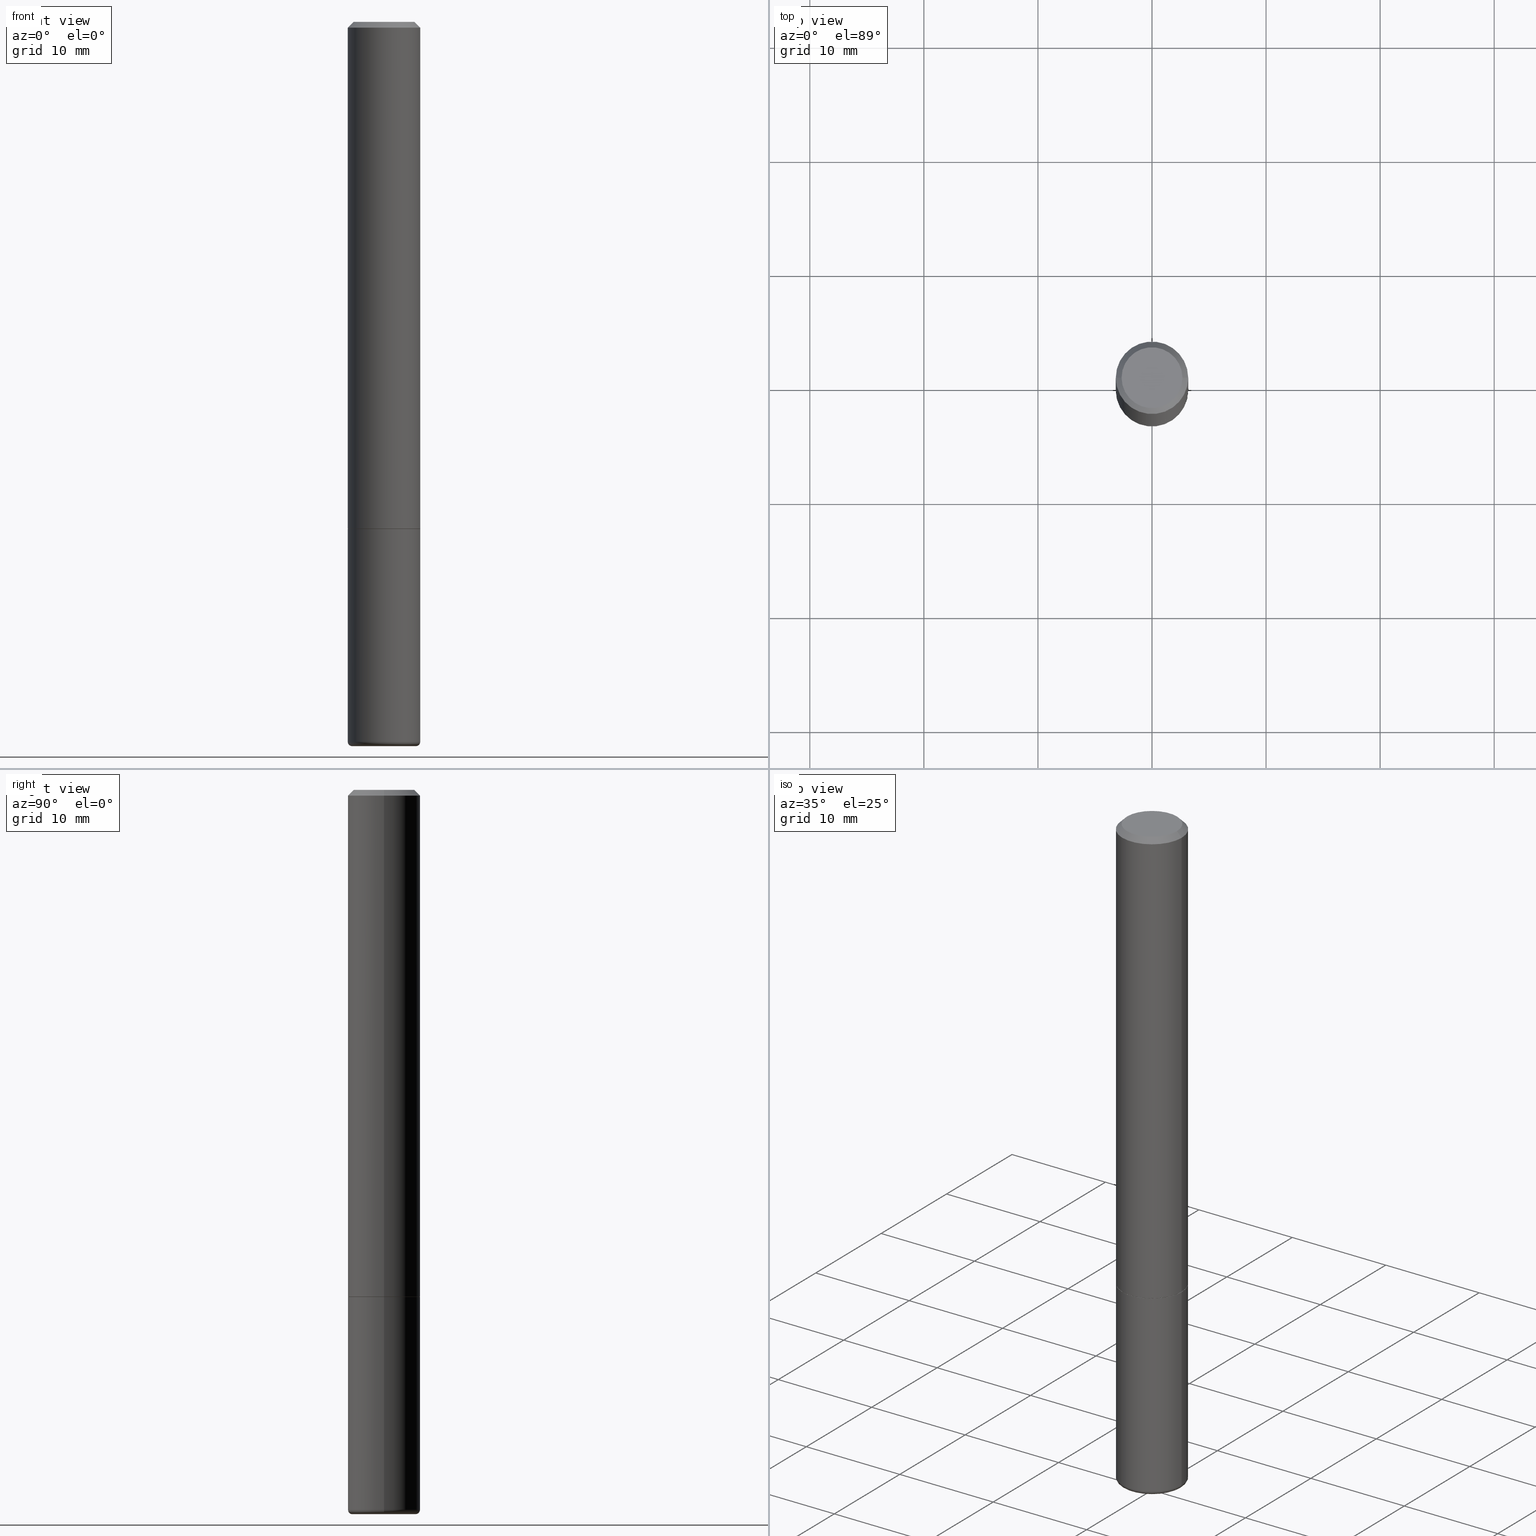
[diagram: canonical four-view strip — front | top / right | iso, engineering-drawing reading convention]
A machine part, canonical four-view strip (front | top / right | iso — engineering-drawing reading convention). The complete STEP part file that produces these views, byte-faithful:
ISO-10303-21;
HEADER;
FILE_DESCRIPTION (( 'STEP AP203' ),
    '1' );
FILE_NAME ('77119.STEP',
    '2024-03-06T16:02:47',
    ( '' ),
    ( '' ),
    'SwSTEP 2.0',
    'SolidWorks 2023',
    '' );
FILE_SCHEMA (( 'CONFIG_CONTROL_DESIGN' ));
ENDSEC;

DATA;
#1 = PERSON_AND_ORGANIZATION ( #336, #368 ) ;
#2 = DIRECTION ( 'NONE',  ( -1.000000000000000000, 6.982962677686267499E-15, 0.000000000000000000 ) ) ;
#3 = PERSON_AND_ORGANIZATION ( #336, #368 ) ;
#4 = DIRECTION ( 'NONE',  ( -2.445468806185136597E-29, 3.491481338843145583E-15, 1.000000000000000000 ) ) ;
#5 = AXIS2_PLACEMENT_3D ( 'NONE', #398, #79, #337 ) ;
#6 = AXIS2_PLACEMENT_3D ( 'NONE', #173, #372, #53 ) ;
#7 = DIRECTION ( 'NONE',  ( 1.000000000000000000, -6.982962677686262766E-15, 4.883557194083111780E-29 ) ) ;
#8 = CC_DESIGN_PERSON_AND_ORGANIZATION_ASSIGNMENT ( #3, #196, ( #111 ) ) ;
#9 = CARTESIAN_POINT ( 'NONE',  ( 4.279570410823989044E-29, -6.110092342975505460E-15, -1.750000000000000222 ) ) ;
#10 = CARTESIAN_POINT ( 'NONE',  ( 6.113672015462842613E-29, -8.728703347107864943E-15, -2.500000000000000000 ) ) ;
#11 = EDGE_CURVE ( 'NONE', #213, #51, #28, .T. ) ;
#12 = DIMENSIONAL_EXPONENTS ( 1.000000000000000000, 0.000000000000000000, 0.000000000000000000, 0.000000000000000000, 0.000000000000000000, 0.000000000000000000, 0.000000000000000000 ) ;
#13 = AXIS2_PLACEMENT_3D ( 'NONE', #203, #266, #172 ) ;
#14 = DIRECTION ( 'NONE',  ( 1.000000000000000000, -6.982962677686266711E-15, 4.876176775795935793E-29 ) ) ;
#15 = DIRECTION ( 'NONE',  ( 1.000000000000000000, -6.982962677686270655E-15, 0.000000000000000000 ) ) ;
#16 = DIRECTION ( 'NONE',  ( 0.7071067811865459074, -7.319954787623249734E-15, -0.7071067811865491270 ) ) ;
#17 = EDGE_CURVE ( 'NONE', #51, #57, #236, .T. ) ;
#18 = CARTESIAN_POINT ( 'NONE',  ( 0.000000000000000000, 0.000000000000000000, 0.000000000000000000 ) ) ;
#19 = EDGE_LOOP ( 'NONE', ( #73, #341, #350, #186 ) ) ;
#20 = ORIENTED_EDGE ( 'NONE', *, *, #371, .T. ) ;
#21 = ORIENTED_EDGE ( 'NONE', *, *, #339, .F. ) ;
#22 = EDGE_CURVE ( 'NONE', #123, #412, #267, .T. ) ;
#23 = VERTEX_POINT ( 'NONE', #296 ) ;
#24 = AXIS2_PLACEMENT_3D ( 'NONE', #35, #293, #66 ) ;
#25 = VECTOR ( 'NONE', #404, 39.37007874015748143 ) ;
#26 = ORIENTED_EDGE ( 'NONE', *, *, #399, .F. ) ;
#27 = APPROVAL_STATUS ( 'not_yet_approved' ) ;
#28 = LINE ( 'NONE', #137, #206 ) ;
#29 = APPROVAL ( #27, 'UNSPECIFIED' ) ;
#30 = DIRECTION ( 'NONE',  ( -2.445468806185136597E-29, 3.491481338843145583E-15, 1.000000000000000000 ) ) ;
#31 = CIRCLE ( 'NONE', #6, 0.01500000000000012955 ) ;
#32 = LOCAL_TIME ( 11, 2, 47.00000000000000000, #61 ) ;
#33 = DIRECTION ( 'NONE',  ( 2.445468806185136597E-29, -3.491481338843145583E-15, -1.000000000000000000 ) ) ;
#34 = APPROVAL_ROLE ( '' ) ;
#35 = CARTESIAN_POINT ( 'NONE',  ( 4.279570410823989044E-29, -6.110092342975505460E-15, -1.750000000000000222 ) ) ;
#36 = ADVANCED_FACE ( 'NONE', ( #224 ), #175, .T. ) ;
#37 = FACE_OUTER_BOUND ( 'NONE', #274, .T. ) ;
#38 = CIRCLE ( 'NONE', #59, 0.1239999999999999991 ) ;
#39 = DIRECTION ( 'NONE',  ( -1.000000000000000000, 7.105427357600994759E-15, 0.000000000000000000 ) ) ;
#40 = FACE_OUTER_BOUND ( 'NONE', #184, .T. ) ;
#41 = EDGE_CURVE ( 'NONE', #92, #195, #110, .T. ) ;
#42 = CARTESIAN_POINT ( 'NONE',  ( 0.1249999999999999584, -9.273918764983043491E-16, -0.02000000000000006287 ) ) ;
#43 = TOROIDAL_SURFACE ( 'NONE', #396, 0.1100000000000000006, 0.01500000000000012088 ) ;
#44 = DIRECTION ( 'NONE',  ( -2.445468806185136597E-29, 3.491481338843145583E-15, 1.000000000000000000 ) ) ;
#45 = CARTESIAN_POINT ( 'NONE',  ( 4.279570410823989044E-29, -6.110092342975505460E-15, -1.750000000000000222 ) ) ;
#46 = DIRECTION ( 'NONE',  ( 0.000000000000000000, 0.000000000000000000, 1.000000000000000000 ) ) ;
#47 = ADVANCED_FACE ( 'NONE', ( #102 ), #409, .T. ) ;
#48 = ORIENTED_EDGE ( 'NONE', *, *, #41, .F. ) ;
#49 = DIRECTION ( 'NONE',  ( 1.000000000000000000, 0.000000000000000000, 0.000000000000000000 ) ) ;
#50 = CIRCLE ( 'NONE', #301, 0.1250000000000000000 ) ;
#51 = VERTEX_POINT ( 'NONE', #387 ) ;
#52 = AXIS2_PLACEMENT_3D ( 'NONE', #401, #242, #312 ) ;
#53 = DIRECTION ( 'NONE',  ( 1.000000000000000000, -6.982962677686207546E-15, 0.000000000000000000 ) ) ;
#54 = ORIENTED_EDGE ( 'NONE', *, *, #238, .T. ) ;
#55 = ADVANCED_FACE ( 'NONE', ( #37 ), #180, .T. ) ;
#56 =( NAMED_UNIT ( * ) SI_UNIT ( $, .STERADIAN. ) SOLID_ANGLE_UNIT ( ) );
#57 = VERTEX_POINT ( 'NONE', #135 ) ;
#58 = ORIENTED_EDGE ( 'NONE', *, *, #17, .T. ) ;
#59 = AXIS2_PLACEMENT_3D ( 'NONE', #185, #217, #147 ) ;
#60 = LOCAL_TIME ( 11, 2, 47.00000000000000000, #384 ) ;
#61 = COORDINATED_UNIVERSAL_TIME_OFFSET ( 5, 0, .BEHIND. ) ;
#62 = VERTEX_POINT ( 'NONE', #261 ) ;
#63 = PERSON_AND_ORGANIZATION ( #336, #368 ) ;
#64 = LINE ( 'NONE', #160, #146 ) ;
#65 = APPROVAL_ROLE ( '' ) ;
#66 = DIRECTION ( 'NONE',  ( 1.000000000000000000, -6.982962677686262766E-15, 0.000000000000000000 ) ) ;
#67 = PRODUCT_RELATED_PRODUCT_CATEGORY ( 'detail', '', ( #365 ) ) ;
#68 = CIRCLE ( 'NONE', #373, 0.1250000000000000000 ) ;
#69 = CALENDAR_DATE ( 2024, 6, 3 ) ;
#70 = ORIENTED_EDGE ( 'NONE', *, *, #204, .T. ) ;
#71 = EDGE_CURVE ( 'NONE', #412, #123, #104, .T. ) ;
#72 = DATE_AND_TIME ( #69, #192 ) ;
#73 = ORIENTED_EDGE ( 'NONE', *, *, #311, .F. ) ;
#74 = DIRECTION ( 'NONE',  ( 1.000000000000000000, -6.982962677686262766E-15, 0.000000000000000000 ) ) ;
#75 = AXIS2_PLACEMENT_3D ( 'NONE', #385, #30, #258 ) ;
#76 = CARTESIAN_POINT ( 'NONE',  ( 0.000000000000000000, 0.000000000000000000, 0.000000000000000000 ) ) ;
#77 = EDGE_CURVE ( 'NONE', #273, #92, #64, .T. ) ;
#78 = LINE ( 'NONE', #42, #338 ) ;
#79 = DIRECTION ( 'NONE',  ( -2.445468806185136597E-29, 3.491481338843145583E-15, 1.000000000000000000 ) ) ;
#80 = CIRCLE ( 'NONE', #5, 0.1100000000000000006 ) ;
#81 = CARTESIAN_POINT ( 'NONE',  ( 0.1250000000000000555, -8.728703347107838319E-16, 6.095220969744923244E-30 ) ) ;
#82 = CC_DESIGN_SECURITY_CLASSIFICATION ( #165, ( #111 ) ) ;
#83 = EDGE_CURVE ( 'NONE', #195, #92, #88, .T. ) ;
#84 = ORIENTED_EDGE ( 'NONE', *, *, #71, .T. ) ;
#85 = APPLICATION_PROTOCOL_DEFINITION ( 'international standard', 'config_control_design', 1994, #294 ) ;
#86 = ORIENTED_EDGE ( 'NONE', *, *, #22, .T. ) ;
#87 = CARTESIAN_POINT ( 'NONE',  ( 0.1239999999999999991, -6.975979715008601207E-15, -1.750000000000000000 ) ) ;
#88 = CIRCLE ( 'NONE', #366, 0.1250000000000001943 ) ;
#89 = EDGE_LOOP ( 'NONE', ( #129, #107, #191, #26 ) ) ;
#90 = ADVANCED_FACE ( 'NONE', ( #392 ), #386, .T. ) ;
#91 = DIRECTION ( 'NONE',  ( 0.7071067811866863506, -2.468850131083710931E-15, 0.7071067811864086838 ) ) ;
#92 = VERTEX_POINT ( 'NONE', #163 ) ;
#93 = DIRECTION ( 'NONE',  ( -2.445468806185136597E-29, 3.491481338843145583E-15, 1.000000000000000000 ) ) ;
#94 = EDGE_LOOP ( 'NONE', ( #58, #282 ) ) ;
#95 = APPROVAL_DATE_TIME ( #290, #158 ) ;
#96 = DIRECTION ( 'NONE',  ( -0.7071067811866863506, 7.493145998870855876E-15, 0.7071067811864086838 ) ) ;
#97 = AXIS2_PLACEMENT_3D ( 'NONE', #300, #44, #14 ) ;
#98 = DATE_AND_TIME ( #389, #32 ) ;
#99 = DIRECTION ( 'NONE',  ( -2.445468806185136597E-29, 3.491481338843145583E-15, 1.000000000000000000 ) ) ;
#100 = CARTESIAN_POINT ( 'NONE',  ( 4.890937612370288923E-31, -6.982962677686312563E-17, -0.02000000000000006287 ) ) ;
#101 = DATE_AND_TIME ( #133, #171 ) ;
#102 = FACE_OUTER_BOUND ( 'NONE', #120, .T. ) ;
#103 = ADVANCED_FACE ( 'NONE', ( #388 ), #43, .T. ) ;
#104 = CIRCLE ( 'NONE', #75, 0.1050000000000000377 ) ;
#105 = CIRCLE ( 'NONE', #52, 0.1249999999999999584 ) ;
#106 = APPROVAL_DATE_TIME ( #72, #29 ) ;
#107 = ORIENTED_EDGE ( 'NONE', *, *, #41, .T. ) ;
#108 = DIRECTION ( 'NONE',  ( -2.445468806185136597E-29, 3.491481338843145583E-15, 1.000000000000000000 ) ) ;
#109 = DIRECTION ( 'NONE',  ( 1.000000000000000000, -6.982962677686267499E-15, 0.000000000000000000 ) ) ;
#110 = CIRCLE ( 'NONE', #190, 0.1250000000000001943 ) ;
#111 = PRODUCT_DEFINITION_FORMATION_WITH_SPECIFIED_SOURCE ( 'ANY', '', #365, .NOT_KNOWN. ) ;
#112 = CARTESIAN_POINT ( 'NONE',  ( 0.1250000000000001943, -6.979471196347446580E-15, -1.749000000000000110 ) ) ;
#113 = CARTESIAN_POINT ( 'NONE',  ( 0.1239999999999999991, -6.975979715008601207E-15, -1.750000000000000000 ) ) ;
#114 = LINE ( 'NONE', #264, #130 ) ;
#115 = APPLICATION_CONTEXT ( 'configuration controlled 3d designs of mechanical parts and assemblies' ) ;
#116 = AXIS2_PLACEMENT_3D ( 'NONE', #199, #143, #39 ) ;
#117 = CARTESIAN_POINT ( 'NONE',  ( 6.113672015462842613E-29, -8.728703347107864943E-15, -2.500000000000000000 ) ) ;
#118 = EDGE_LOOP ( 'NONE', ( #127, #70, #208, #309 ) ) ;
#119 = PERSON_AND_ORGANIZATION_ROLE ( 'design_owner' ) ;
#120 = EDGE_LOOP ( 'NONE', ( #125, #151, #54, #378 ) ) ;
#121 = CARTESIAN_POINT ( 'NONE',  ( -0.1250000000000000555, -7.788152707325091448E-15, -2.484999999999999876 ) ) ;
#122 = CIRCLE ( 'NONE', #295, 0.1100000000000000006 ) ;
#123 = VERTEX_POINT ( 'NONE', #358 ) ;
#124 = LOCAL_TIME ( 11, 2, 47.00000000000000000, #281 ) ;
#125 = ORIENTED_EDGE ( 'NONE', *, *, #71, .F. ) ;
#126 = APPROVAL_STATUS ( 'not_yet_approved' ) ;
#127 = ORIENTED_EDGE ( 'NONE', *, *, #359, .F. ) ;
#128 = ADVANCED_FACE ( 'NONE', ( #194 ), #320, .T. ) ;
#129 = ORIENTED_EDGE ( 'NONE', *, *, #223, .F. ) ;
#130 = VECTOR ( 'NONE', #233, 39.37007874015748143 ) ;
#131 = PERSON_AND_ORGANIZATION ( #336, #368 ) ;
#132 = DIRECTION ( 'NONE',  ( -2.445468806185136597E-29, 3.491481338843145583E-15, 1.000000000000000000 ) ) ;
#133 = CALENDAR_DATE ( 2024, 6, 3 ) ;
#134 = DIRECTION ( 'NONE',  ( -2.445468806185136597E-29, 3.491481338843145583E-15, 1.000000000000000000 ) ) ;
#135 = CARTESIAN_POINT ( 'NONE',  ( -0.1250000000000000000, -6.505033315300235838E-15, -1.750000000000000222 ) ) ;
#136 = AXIS2_PLACEMENT_3D ( 'NONE', #76, #299, #240 ) ;
#137 = CARTESIAN_POINT ( 'NONE',  ( 0.1250000000000000000, -8.728703347107833388E-16, 6.095220969744919741E-30 ) ) ;
#138 = CC_DESIGN_PERSON_AND_ORGANIZATION_ASSIGNMENT ( #1, #161, ( #165 ) ) ;
#139 = DIRECTION ( 'NONE',  ( 2.438088387897960049E-29, -3.491481338843145188E-15, -1.000000000000000000 ) ) ;
#140 = CARTESIAN_POINT ( 'NONE',  ( 0.1250000000000000555, -9.549201461736000019E-15, -2.484999999999999876 ) ) ;
#141 = AXIS2_PLACEMENT_3D ( 'NONE', #235, #364, #109 ) ;
#142 = FACE_OUTER_BOUND ( 'NONE', #253, .T. ) ;
#143 = DIRECTION ( 'NONE',  ( 7.105427357601001859E-15, 1.000000000000000000, -3.491481338843145583E-15 ) ) ;
#144 = DIRECTION ( 'NONE',  ( 1.000000000000000000, -6.982962677686266711E-15, 4.876176775795935793E-29 ) ) ;
#145 = DESIGN_CONTEXT ( 'detailed design', #115, 'design' ) ;
#146 = VECTOR ( 'NONE', #96, 39.37007874015748143 ) ;
#147 = DIRECTION ( 'NONE',  ( 1.000000000000000000, -6.982962677686262766E-15, 0.000000000000000000 ) ) ;
#148 = ORIENTED_EDGE ( 'NONE', *, *, #344, .T. ) ;
#149 = ADVANCED_FACE ( 'NONE', ( #369 ), #174, .F. ) ;
#150 = PERSON_AND_ORGANIZATION ( #336, #368 ) ;
#151 = ORIENTED_EDGE ( 'NONE', *, *, #166, .T. ) ;
#152 =( LENGTH_UNIT ( ) NAMED_UNIT ( * ) SI_UNIT ( $, .METRE. ) );
#153 = ORIENTED_EDGE ( 'NONE', *, *, #77, .T. ) ;
#154 = ORIENTED_EDGE ( 'NONE', *, *, #298, .F. ) ;
#155 = CC_DESIGN_APPROVAL ( #234, ( #165 ) ) ;
#156 = UNCERTAINTY_MEASURE_WITH_UNIT (LENGTH_MEASURE( 1.000000000000000082E-05 ), #379, 'distance_accuracy_value', 'NONE');
#157 = ORIENTED_EDGE ( 'NONE', *, *, #166, .F. ) ;
#158 = APPROVAL ( #126, 'UNSPECIFIED' ) ;
#159 = PERSON_AND_ORGANIZATION_ROLE ( 'design_supplier' ) ;
#160 = CARTESIAN_POINT ( 'NONE',  ( -0.1239999999999999991, -5.229019350632980447E-15, -1.750000000000000000 ) ) ;
#162 = MANIFOLD_SOLID_BREP ( 'Body-Move/Copy2[1]', #360 ) ;
#161 = PERSON_AND_ORGANIZATION_ROLE ( 'classification_officer' ) ;
#163 = CARTESIAN_POINT ( 'NONE',  ( -0.1250000000000001943, -2.200036824506633304E-15, -1.749000000000000110 ) ) ;
#164 = AXIS2_PLACEMENT_3D ( 'NONE', #356, #132, #362 ) ;
#165 = SECURITY_CLASSIFICATION ( '', '', #413 ) ;
#166 = EDGE_CURVE ( 'NONE', #412, #23, #78, .T. ) ;
#167 = CARTESIAN_POINT ( 'NONE',  ( 0.000000000000000000, 0.000000000000000000, 0.000000000000000000 ) ) ;
#168 = DIRECTION ( 'NONE',  ( 1.000000000000000000, -6.982962677686267499E-15, 0.000000000000000000 ) ) ;
#169 = VERTEX_POINT ( 'NONE', #237 ) ;
#170 = AXIS2_PLACEMENT_3D ( 'NONE', #418, #355, #2 ) ;
#171 = LOCAL_TIME ( 11, 2, 47.00000000000000000, #417 ) ;
#172 = DIRECTION ( 'NONE',  ( 1.000000000000000000, -6.982962677686265922E-15, 4.876176775795935793E-29 ) ) ;
#173 = CARTESIAN_POINT ( 'NONE',  ( 0.1100000000000000006, -9.444457021570706649E-15, -2.484999999999999876 ) ) ;
#174 = PLANE ( 'NONE',  #416 ) ;
#175 = CONICAL_SURFACE ( 'NONE', #164, 0.1239999999999999991, 0.7853981633976446775 ) ;
#176 = ADVANCED_FACE ( 'NONE', ( #335 ), #340, .T. ) ;
#177 = DIRECTION ( 'NONE',  ( -2.445468806185136597E-29, 3.491481338843145583E-15, 1.000000000000000000 ) ) ;
#178 = DIRECTION ( 'NONE',  ( -2.445468806185136597E-29, 3.491481338843145583E-15, 1.000000000000000000 ) ) ;
#179 = EDGE_LOOP ( 'NONE', ( #244, #280, #348, #406 ) ) ;
#180 = TOROIDAL_SURFACE ( 'NONE', #308, 0.1100000000000000006, 0.01500000000000012088 ) ;
#181 = ORIENTED_EDGE ( 'NONE', *, *, #326, .F. ) ;
#182 = LINE ( 'NONE', #243, #402 ) ;
#183 = ADVANCED_BREP_SHAPE_REPRESENTATION ( '77119', ( #162, #310, #374 ), #324 ) ;
#184 = EDGE_LOOP ( 'NONE', ( #319, #382 ) ) ;
#185 = CARTESIAN_POINT ( 'NONE',  ( 4.279570410823988484E-29, -6.110092342975504671E-15, -1.750000000000000000 ) ) ;
#186 = ORIENTED_EDGE ( 'NONE', *, *, #204, .F. ) ;
#187 = CONICAL_SURFACE ( 'NONE', #241, 0.1239999999999999991, 0.7853981633976446775 ) ;
#188 = CARTESIAN_POINT ( 'NONE',  ( -0.1249999999999999584, 8.030407079339200406E-16, -0.02000000000000006287 ) ) ;
#189 = EDGE_CURVE ( 'NONE', #195, #23, #397, .T. ) ;
#190 = AXIS2_PLACEMENT_3D ( 'NONE', #325, #390, #168 ) ;
#191 = ORIENTED_EDGE ( 'NONE', *, *, #189, .T. ) ;
#192 = LOCAL_TIME ( 11, 2, 47.00000000000000000, #353 ) ;
#193 = CARTESIAN_POINT ( 'NONE',  ( 4.277124942017804562E-29, -6.106600861636661664E-15, -1.749000000000000110 ) ) ;
#194 = FACE_OUTER_BOUND ( 'NONE', #307, .T. ) ;
#195 = VERTEX_POINT ( 'NONE', #112 ) ;
#196 = PERSON_AND_ORGANIZATION_ROLE ( 'creator' ) ;
#197 = ORIENTED_EDGE ( 'NONE', *, *, #22, .F. ) ;
#198 = CARTESIAN_POINT ( 'NONE',  ( 6.076989983370064174E-29, -8.676331127025216680E-15, -2.484999999999999876 ) ) ;
#199 = CARTESIAN_POINT ( 'NONE',  ( -0.1100000000000000006, -7.894734117689105781E-15, -2.484999999999999876 ) ) ;
#200 = CIRCLE ( 'NONE', #255, 0.1250000000000000000 ) ;
#201 = APPROVAL_PERSON_ORGANIZATION ( #225, #29, #222 ) ;
#202 = DIRECTION ( 'NONE',  ( 2.438088387897960049E-29, -3.491481338843145188E-15, -1.000000000000000000 ) ) ;
#203 = CARTESIAN_POINT ( 'NONE',  ( 4.279570410823989044E-29, -6.110092342975505460E-15, -1.750000000000000222 ) ) ;
#204 = EDGE_CURVE ( 'NONE', #343, #213, #200, .T. ) ;
#205 = CARTESIAN_POINT ( 'NONE',  ( 6.076989983370064174E-29, -8.676331127025216680E-15, -2.484999999999999876 ) ) ;
#206 = VECTOR ( 'NONE', #415, 39.37007874015748143 ) ;
#207 = CARTESIAN_POINT ( 'NONE',  ( 7.332110811570581229E-16, 0.1050000000000000377, -3.922166155191328542E-16 ) ) ;
#208 = ORIENTED_EDGE ( 'NONE', *, *, #11, .T. ) ;
#209 = DIRECTION ( 'NONE',  ( 1.000000000000000000, -6.982962677686270655E-15, 0.000000000000000000 ) ) ;
#210 = ORIENTED_EDGE ( 'NONE', *, *, #83, .T. ) ;
#211 = CIRCLE ( 'NONE', #141, 0.1249999999999999584 ) ;
#212 = CARTESIAN_POINT ( 'NONE',  ( -0.1100000000000000006, -7.867629522548422746E-15, -2.500000000000000000 ) ) ;
#213 = VERTEX_POINT ( 'NONE', #140 ) ;
#214 = DIRECTION ( 'NONE',  ( 1.000000000000000000, -6.982962677686262766E-15, 0.000000000000000000 ) ) ;
#215 = ORIENTED_EDGE ( 'NONE', *, *, #363, .T. ) ;
#216 = ADVANCED_FACE ( 'NONE', ( #142 ), #395, .F. ) ;
#217 = DIRECTION ( 'NONE',  ( -2.445468806185136597E-29, 3.491481338843145583E-15, 1.000000000000000000 ) ) ;
#218 = ORIENTED_EDGE ( 'NONE', *, *, #399, .T. ) ;
#219 = AXIS2_PLACEMENT_3D ( 'NONE', #207, #304, #265 ) ;
#220 = CALENDAR_DATE ( 2024, 6, 3 ) ;
#221 = DIRECTION ( 'NONE',  ( 1.000000000000000000, -6.982962677686267499E-15, 0.000000000000000000 ) ) ;
#222 = APPROVAL_ROLE ( '' ) ;
#223 = EDGE_CURVE ( 'NONE', #92, #62, #114, .T. ) ;
#224 = FACE_OUTER_BOUND ( 'NONE', #329, .T. ) ;
#225 = PERSON_AND_ORGANIZATION ( #336, #368 ) ;
#226 = DIRECTION ( 'NONE',  ( -1.000000000000000000, 6.982962677686267499E-15, 0.000000000000000000 ) ) ;
#227 = EDGE_LOOP ( 'NONE', ( #414, #408, #215, #48 ) ) ;
#228 = PERSON_AND_ORGANIZATION ( #336, #368 ) ;
#229 = ORIENTED_EDGE ( 'NONE', *, *, #363, .F. ) ;
#230 = CC_DESIGN_APPROVAL ( #158, ( #111 ) ) ;
#231 = SHAPE_DEFINITION_REPRESENTATION ( #327, #183 ) ;
#232 = ORIENTED_EDGE ( 'NONE', *, *, #238, .F. ) ;
#233 = DIRECTION ( 'NONE',  ( -2.445468806185136877E-29, 3.491481338843145188E-15, 1.000000000000000000 ) ) ;
#234 = APPROVAL ( #257, 'UNSPECIFIED' ) ;
#235 = CARTESIAN_POINT ( 'NONE',  ( 4.890937612370288923E-31, -6.982962677686312563E-17, -0.02000000000000006287 ) ) ;
#236 = CIRCLE ( 'NONE', #24, 0.1250000000000000000 ) ;
#237 = CARTESIAN_POINT ( 'NONE',  ( 0.1100000000000000006, -9.496829241653354912E-15, -2.500000000000000000 ) ) ;
#238 = EDGE_CURVE ( 'NONE', #23, #62, #211, .T. ) ;
#239 = FACE_OUTER_BOUND ( 'NONE', #352, .T. ) ;
#240 = DIRECTION ( 'NONE',  ( 1.000000000000000000, -6.982962677686267499E-15, 4.876176775795936353E-29 ) ) ;
#241 = AXIS2_PLACEMENT_3D ( 'NONE', #318, #407, #351 ) ;
#242 = DIRECTION ( 'NONE',  ( -2.445468806185136597E-29, 3.491481338843145583E-15, 1.000000000000000000 ) ) ;
#243 = CARTESIAN_POINT ( 'NONE',  ( -0.1250000000000000000, 8.881784197001252323E-16, -6.148668862818632227E-30 ) ) ;
#244 = ORIENTED_EDGE ( 'NONE', *, *, #298, .T. ) ;
#245 = APPLICATION_PROTOCOL_DEFINITION ( 'international standard', 'config_control_design', 1994, #115 ) ;
#246 = VERTEX_POINT ( 'NONE', #113 ) ;
#247 = LENGTH_MEASURE_WITH_UNIT ( LENGTH_MEASURE( 0.02539999999999999897 ), #152 );
#248 = ORIENTED_EDGE ( 'NONE', *, *, #189, .F. ) ;
#249 = ADVANCED_FACE ( 'NONE', ( #239 ), #367, .F. ) ;
#250 = CARTESIAN_POINT ( 'NONE',  ( 0.1050000000000000377, -8.238720831321576644E-16, -5.122214988119949344E-17 ) ) ;
#251 = EDGE_LOOP ( 'NONE', ( #157, #197, #313, #218 ) ) ;
#252 = PERSON_AND_ORGANIZATION ( #336, #368 ) ;
#253 = EDGE_LOOP ( 'NONE', ( #86, #84 ) ) ;
#254 = ADVANCED_FACE ( 'NONE', ( #334 ), #332, .T. ) ;
#255 = AXIS2_PLACEMENT_3D ( 'NONE', #297, #178, #15 ) ;
#256 = CARTESIAN_POINT ( 'NONE',  ( 1.252621697202263706E-45, -1.788411804456536750E-31, -5.122214988120493535E-17 ) ) ;
#257 = APPROVAL_STATUS ( 'not_yet_approved' ) ;
#258 = DIRECTION ( 'NONE',  ( 1.000000000000000000, -6.982962677686267499E-15, 4.874400871621236533E-29 ) ) ;
#259 = DATE_AND_TIME ( #220, #124 ) ;
#260 = DIRECTION ( 'NONE',  ( 1.000000000000000000, -6.982962677686267499E-15, 4.876176775795936353E-29 ) ) ;
#261 = CARTESIAN_POINT ( 'NONE',  ( -0.1249999999999999584, 8.030407079339200406E-16, -0.02000000000000006287 ) ) ;
#262 = CC_DESIGN_APPROVAL ( #29, ( #283 ) ) ;
#263 = CC_DESIGN_PERSON_AND_ORGANIZATION_ASSIGNMENT ( #150, #119, ( #365 ) ) ;
#264 = CARTESIAN_POINT ( 'NONE',  ( -0.1250000000000000555, 8.881784197001256268E-16, -6.148668862818635730E-30 ) ) ;
#265 = DIRECTION ( 'NONE',  ( -1.000000000000000000, 6.982962677686265922E-15, -4.876176775795935793E-29 ) ) ;
#266 = DIRECTION ( 'NONE',  ( -2.438088387897960049E-29, 3.491481338843145188E-15, 1.000000000000000000 ) ) ;
#267 = CIRCLE ( 'NONE', #331, 0.1050000000000000377 ) ;
#268 = CARTESIAN_POINT ( 'NONE',  ( -0.1239999999999999991, -5.223720896284758045E-15, -1.750000000000000000 ) ) ;
#269 = PLANE ( 'NONE',  #345 ) ;
#270 = AXIS2_PLACEMENT_3D ( 'NONE', #375, #342, #144 ) ;
#271 = CC_DESIGN_PERSON_AND_ORGANIZATION_ASSIGNMENT ( #63, #159, ( #111 ) ) ;
#272 = DIRECTION ( 'NONE',  ( -2.445468806185136877E-29, 3.491481338843145188E-15, 1.000000000000000000 ) ) ;
#273 = VERTEX_POINT ( 'NONE', #268 ) ;
#274 = EDGE_LOOP ( 'NONE', ( #148, #315, #154, #181 ) ) ;
#275 = FACE_OUTER_BOUND ( 'NONE', #227, .T. ) ;
#276 = EDGE_CURVE ( 'NONE', #57, #51, #50, .T. ) ;
#277 = ORIENTED_EDGE ( 'NONE', *, *, #83, .F. ) ;
#278 = AXIS2_PLACEMENT_3D ( 'NONE', #167, #134, #260 ) ;
#279 = CARTESIAN_POINT ( 'NONE',  ( 4.279570410823988484E-29, -6.110092342975504671E-15, -1.750000000000000000 ) ) ;
#280 = ORIENTED_EDGE ( 'NONE', *, *, #359, .T. ) ;
#281 = COORDINATED_UNIVERSAL_TIME_OFFSET ( 5, 0, .BEHIND. ) ;
#282 = ORIENTED_EDGE ( 'NONE', *, *, #276, .T. ) ;
#283 = PRODUCT_DEFINITION ( 'UNKNOWN', '', #111, #145 ) ;
#284 = PERSON_AND_ORGANIZATION_ROLE ( 'creator' ) ;
#285 = DIRECTION ( 'NONE',  ( -2.445468806185136597E-29, 3.491481338843145583E-15, 1.000000000000000000 ) ) ;
#286 = CIRCLE ( 'NONE', #116, 0.01500000000000012955 ) ;
#287 = DATE_TIME_ROLE ( 'creation_date' ) ;
#288 = APPROVAL_PERSON_ORGANIZATION ( #131, #234, #34 ) ;
#289 = DIRECTION ( 'NONE',  ( 1.000000000000000000, -6.982962677686262766E-15, 4.883557194083111780E-29 ) ) ;
#290 = DATE_AND_TIME ( #361, #60 ) ;
#291 = CARTESIAN_POINT ( 'NONE',  ( 6.076989983370064174E-29, -8.676331127025216680E-15, -2.484999999999999876 ) ) ;
#292 = EDGE_CURVE ( 'NONE', #376, #169, #80, .T. ) ;
#293 = DIRECTION ( 'NONE',  ( -2.445468806185136597E-29, 3.491481338843145583E-15, 1.000000000000000000 ) ) ;
#294 = APPLICATION_CONTEXT ( 'configuration controlled 3d designs of mechanical parts and assemblies' ) ;
#295 = AXIS2_PLACEMENT_3D ( 'NONE', #117, #93, #209 ) ;
#296 = CARTESIAN_POINT ( 'NONE',  ( 0.1249999999999999584, -9.273918764983043491E-16, -0.02000000000000006287 ) ) ;
#297 = CARTESIAN_POINT ( 'NONE',  ( 6.076989983370064174E-29, -8.676331127025216680E-15, -2.484999999999999876 ) ) ;
#298 = EDGE_CURVE ( 'NONE', #213, #343, #68, .T. ) ;
#299 = DIRECTION ( 'NONE',  ( -2.445468806185136597E-29, 3.491481338843145583E-15, 1.000000000000000000 ) ) ;
#300 = CARTESIAN_POINT ( 'NONE',  ( 0.000000000000000000, 0.000000000000000000, 0.000000000000000000 ) ) ;
#301 = AXIS2_PLACEMENT_3D ( 'NONE', #45, #108, #74 ) ;
#302 = CIRCLE ( 'NONE', #410, 0.1239999999999999991 ) ;
#303 = DIRECTION ( 'NONE',  ( 1.000000000000000000, -6.982962677686270655E-15, 0.000000000000000000 ) ) ;
#304 = DIRECTION ( 'NONE',  ( 2.438088387897960049E-29, -3.491481338843145188E-15, -1.000000000000000000 ) ) ;
#305 = CC_DESIGN_DATE_AND_TIME_ASSIGNMENT ( #101, #287, ( #283 ) ) ;
#306 = LINE ( 'NONE', #87, #317 ) ;
#307 = EDGE_LOOP ( 'NONE', ( #210, #380, #232, #248 ) ) ;
#308 = AXIS2_PLACEMENT_3D ( 'NONE', #198, #4, #7 ) ;
#309 = ORIENTED_EDGE ( 'NONE', *, *, #276, .F. ) ;
#310 = MANIFOLD_SOLID_BREP ( 'Body-Move/Copy2[2]', #316 ) ;
#311 = EDGE_CURVE ( 'NONE', #376, #343, #286, .T. ) ;
#312 = DIRECTION ( 'NONE',  ( 1.000000000000000000, -6.982962677686267499E-15, 0.000000000000000000 ) ) ;
#313 = ORIENTED_EDGE ( 'NONE', *, *, #394, .T. ) ;
#314 = LINE ( 'NONE', #188, #25 ) ;
#315 = ORIENTED_EDGE ( 'NONE', *, *, #311, .T. ) ;
#316 = CLOSED_SHELL ( 'NONE', ( #36, #128, #47, #90, #254, #333, #249, #216 ) ) ;
#317 = VECTOR ( 'NONE', #91, 39.37007874015748143 ) ;
#318 = CARTESIAN_POINT ( 'NONE',  ( 4.279570410823988484E-29, -6.110092342975504671E-15, -1.750000000000000000 ) ) ;
#319 = ORIENTED_EDGE ( 'NONE', *, *, #344, .F. ) ;
#320 = CYLINDRICAL_SURFACE ( 'NONE', #278, 0.1250000000000000555 ) ;
#321 = ADVANCED_FACE ( 'NONE', ( #40 ), #269, .T. ) ;
#322 = DIRECTION ( 'NONE',  ( -2.445468806185136597E-29, 3.491481338843145583E-15, 1.000000000000000000 ) ) ;
#323 = AXIS2_PLACEMENT_3D ( 'NONE', #100, #33, #226 ) ;
#324 =( GEOMETRIC_REPRESENTATION_CONTEXT ( 3 ) GLOBAL_UNCERTAINTY_ASSIGNED_CONTEXT ( ( #156 ) ) GLOBAL_UNIT_ASSIGNED_CONTEXT ( ( #379, #349, #56 ) ) REPRESENTATION_CONTEXT ( 'NONE', 'WORKASPACE' ) );
#325 = CARTESIAN_POINT ( 'NONE',  ( 4.277124942017804562E-29, -6.106600861636661664E-15, -1.749000000000000110 ) ) ;
#326 = EDGE_CURVE ( 'NONE', #169, #213, #31, .T. ) ;
#327 = PRODUCT_DEFINITION_SHAPE ( 'NONE', 'NONE',  #283 ) ;
#328 = DATE_TIME_ROLE ( 'classification_date' ) ;
#329 = EDGE_LOOP ( 'NONE', ( #20, #153, #277, #229 ) ) ;
#330 = DIRECTION ( 'NONE',  ( 1.000000000000000000, -6.982962677686267499E-15, 4.874400871621236533E-29 ) ) ;
#331 = AXIS2_PLACEMENT_3D ( 'NONE', #256, #99, #330 ) ;
#332 = CYLINDRICAL_SURFACE ( 'NONE', #136, 0.1250000000000000555 ) ;
#333 = ADVANCED_FACE ( 'NONE', ( #275 ), #187, .T. ) ;
#334 = FACE_OUTER_BOUND ( 'NONE', #89, .T. ) ;
#335 = FACE_OUTER_BOUND ( 'NONE', #118, .T. ) ;
#336 = PERSON ( 'UNSPECIFIED', 'UNSPECIFIED', 'UNSPECIFIED', ('UNSPECIFIED'), ('UNSPECIFIED'), ('UNSPECIFIED') ) ;
#337 = DIRECTION ( 'NONE',  ( 1.000000000000000000, -6.982962677686270655E-15, 0.000000000000000000 ) ) ;
#338 = VECTOR ( 'NONE', #16, 39.37007874015748143 ) ;
#339 = EDGE_CURVE ( 'NONE', #273, #246, #38, .T. ) ;
#340 = CYLINDRICAL_SURFACE ( 'NONE', #97, 0.1250000000000000000 ) ;
#341 = ORIENTED_EDGE ( 'NONE', *, *, #292, .T. ) ;
#342 = DIRECTION ( 'NONE',  ( -2.445468806185136597E-29, 3.491481338843145583E-15, 1.000000000000000000 ) ) ;
#343 = VERTEX_POINT ( 'NONE', #121 ) ;
#344 = EDGE_CURVE ( 'NONE', #169, #376, #122, .T. ) ;
#345 = AXIS2_PLACEMENT_3D ( 'NONE', #10, #202, #400 ) ;
#346 = APPROVAL_PERSON_ORGANIZATION ( #252, #158, #65 ) ;
#347 = CYLINDRICAL_SURFACE ( 'NONE', #270, 0.1250000000000000000 ) ;
#348 = ORIENTED_EDGE ( 'NONE', *, *, #17, .F. ) ;
#349 =( NAMED_UNIT ( * ) PLANE_ANGLE_UNIT ( ) SI_UNIT ( $, .RADIAN. ) );
#350 = ORIENTED_EDGE ( 'NONE', *, *, #326, .T. ) ;
#351 = DIRECTION ( 'NONE',  ( 1.000000000000000000, -6.982962677686262766E-15, 0.000000000000000000 ) ) ;
#352 = EDGE_LOOP ( 'NONE', ( #405, #21 ) ) ;
#353 = COORDINATED_UNIVERSAL_TIME_OFFSET ( 5, 0, .BEHIND. ) ;
#354 = ADVANCED_FACE ( 'NONE', ( #377 ), #347, .T. ) ;
#355 = DIRECTION ( 'NONE',  ( 2.445468806185136597E-29, -3.491481338843145583E-15, -1.000000000000000000 ) ) ;
#356 = CARTESIAN_POINT ( 'NONE',  ( 4.279570410823988484E-29, -6.110092342975504671E-15, -1.750000000000000000 ) ) ;
#357 = APPROVAL_DATE_TIME ( #259, #234 ) ;
#358 = CARTESIAN_POINT ( 'NONE',  ( -0.1050000000000000377, 7.681258945454890818E-16, -5.122214988121018004E-17 ) ) ;
#359 = EDGE_CURVE ( 'NONE', #343, #57, #182, .T. ) ;
#360 = CLOSED_SHELL ( 'NONE', ( #354, #55, #149, #176, #103, #321 ) ) ;
#361 = CALENDAR_DATE ( 2024, 6, 3 ) ;
#362 = DIRECTION ( 'NONE',  ( 1.000000000000000000, -6.982962677686262766E-15, 0.000000000000000000 ) ) ;
#363 = EDGE_CURVE ( 'NONE', #246, #195, #306, .T. ) ;
#364 = DIRECTION ( 'NONE',  ( -2.445468806185136597E-29, 3.491481338843145583E-15, 1.000000000000000000 ) ) ;
#365 = PRODUCT ( '77119', '77119', '', ( #411 ) ) ;
#366 = AXIS2_PLACEMENT_3D ( 'NONE', #193, #322, #221 ) ;
#367 = PLANE ( 'NONE',  #13 ) ;
#368 = ORGANIZATION ( 'UNSPECIFIED', 'UNSPECIFIED', '' ) ;
#369 = FACE_OUTER_BOUND ( 'NONE', #94, .T. ) ;
#370 = DIRECTION ( 'NONE',  ( -2.445468806185136877E-29, 3.491481338843145188E-15, 1.000000000000000000 ) ) ;
#371 = EDGE_CURVE ( 'NONE', #246, #273, #302, .T. ) ;
#372 = DIRECTION ( 'NONE',  ( -6.982962677686266711E-15, -1.000000000000000000, 3.491481338843145583E-15 ) ) ;
#373 = AXIS2_PLACEMENT_3D ( 'NONE', #205, #177, #303 ) ;
#374 = AXIS2_PLACEMENT_3D ( 'NONE', #18, #46, #49 ) ;
#375 = CARTESIAN_POINT ( 'NONE',  ( 0.000000000000000000, 0.000000000000000000, 0.000000000000000000 ) ) ;
#376 = VERTEX_POINT ( 'NONE', #212 ) ;
#377 = FACE_OUTER_BOUND ( 'NONE', #179, .T. ) ;
#378 = ORIENTED_EDGE ( 'NONE', *, *, #394, .F. ) ;
#379 =( CONVERSION_BASED_UNIT ( 'INCH', #247 ) LENGTH_UNIT ( ) NAMED_UNIT ( #12 ) );
#380 = ORIENTED_EDGE ( 'NONE', *, *, #223, .T. ) ;
#381 = DIRECTION ( 'NONE',  ( -2.445468806185136597E-29, 3.491481338843145583E-15, 1.000000000000000000 ) ) ;
#382 = ORIENTED_EDGE ( 'NONE', *, *, #292, .F. ) ;
#383 = CC_DESIGN_PERSON_AND_ORGANIZATION_ASSIGNMENT ( #228, #284, ( #283 ) ) ;
#384 = COORDINATED_UNIVERSAL_TIME_OFFSET ( 5, 0, .BEHIND. ) ;
#385 = CARTESIAN_POINT ( 'NONE',  ( 1.252621697202263706E-45, -1.788411804456536750E-31, -5.122214988120493535E-17 ) ) ;
#386 = CONICAL_SURFACE ( 'NONE', #170, 0.1249999999999999584, 0.7853981633974460586 ) ;
#387 = CARTESIAN_POINT ( 'NONE',  ( 0.1250000000000000000, -6.982962677686288010E-15, -1.750000000000000222 ) ) ;
#388 = FACE_OUTER_BOUND ( 'NONE', #19, .T. ) ;
#389 = CALENDAR_DATE ( 2024, 6, 3 ) ;
#390 = DIRECTION ( 'NONE',  ( -2.445468806185136597E-29, 3.491481338843145583E-15, 1.000000000000000000 ) ) ;
#391 = VECTOR ( 'NONE', #370, 39.37007874015748143 ) ;
#392 = FACE_OUTER_BOUND ( 'NONE', #251, .T. ) ;
#393 = DIRECTION ( 'NONE',  ( -1.000000000000000000, 6.982962677686265922E-15, -4.876176775795935793E-29 ) ) ;
#394 = EDGE_CURVE ( 'NONE', #123, #62, #314, .T. ) ;
#395 = PLANE ( 'NONE',  #219 ) ;
#396 = AXIS2_PLACEMENT_3D ( 'NONE', #291, #285, #289 ) ;
#397 = LINE ( 'NONE', #81, #391 ) ;
#398 = CARTESIAN_POINT ( 'NONE',  ( 6.113672015462842613E-29, -8.728703347107864943E-15, -2.500000000000000000 ) ) ;
#399 = EDGE_CURVE ( 'NONE', #62, #23, #105, .T. ) ;
#400 = DIRECTION ( 'NONE',  ( -1.000000000000000000, 6.982962677686265922E-15, -4.876176775795935793E-29 ) ) ;
#401 = CARTESIAN_POINT ( 'NONE',  ( 4.890937612370288923E-31, -6.982962677686312563E-17, -0.02000000000000006287 ) ) ;
#402 = VECTOR ( 'NONE', #272, 39.37007874015748143 ) ;
#403 = CC_DESIGN_DATE_AND_TIME_ASSIGNMENT ( #98, #328, ( #165 ) ) ;
#404 = DIRECTION ( 'NONE',  ( -0.7071067811865459074, 2.468850131082240100E-15, -0.7071067811865491270 ) ) ;
#405 = ORIENTED_EDGE ( 'NONE', *, *, #371, .F. ) ;
#406 = ORIENTED_EDGE ( 'NONE', *, *, #11, .F. ) ;
#407 = DIRECTION ( 'NONE',  ( -2.445468806185136597E-29, 3.491481338843145583E-15, 1.000000000000000000 ) ) ;
#408 = ORIENTED_EDGE ( 'NONE', *, *, #339, .T. ) ;
#409 = CONICAL_SURFACE ( 'NONE', #323, 0.1249999999999999584, 0.7853981633974460586 ) ;
#410 = AXIS2_PLACEMENT_3D ( 'NONE', #279, #381, #214 ) ;
#411 = MECHANICAL_CONTEXT ( 'NONE', #294, 'mechanical' ) ;
#412 = VERTEX_POINT ( 'NONE', #250 ) ;
#413 = SECURITY_CLASSIFICATION_LEVEL ( 'unclassified' ) ;
#414 = ORIENTED_EDGE ( 'NONE', *, *, #77, .F. ) ;
#415 = DIRECTION ( 'NONE',  ( -2.445468806185136877E-29, 3.491481338843145188E-15, 1.000000000000000000 ) ) ;
#416 = AXIS2_PLACEMENT_3D ( 'NONE', #9, #139, #393 ) ;
#417 = COORDINATED_UNIVERSAL_TIME_OFFSET ( 5, 0, .BEHIND. ) ;
#418 = CARTESIAN_POINT ( 'NONE',  ( 4.890937612370288923E-31, -6.982962677686312563E-17, -0.02000000000000006287 ) ) ;
ENDSEC;
END-ISO-10303-21;
